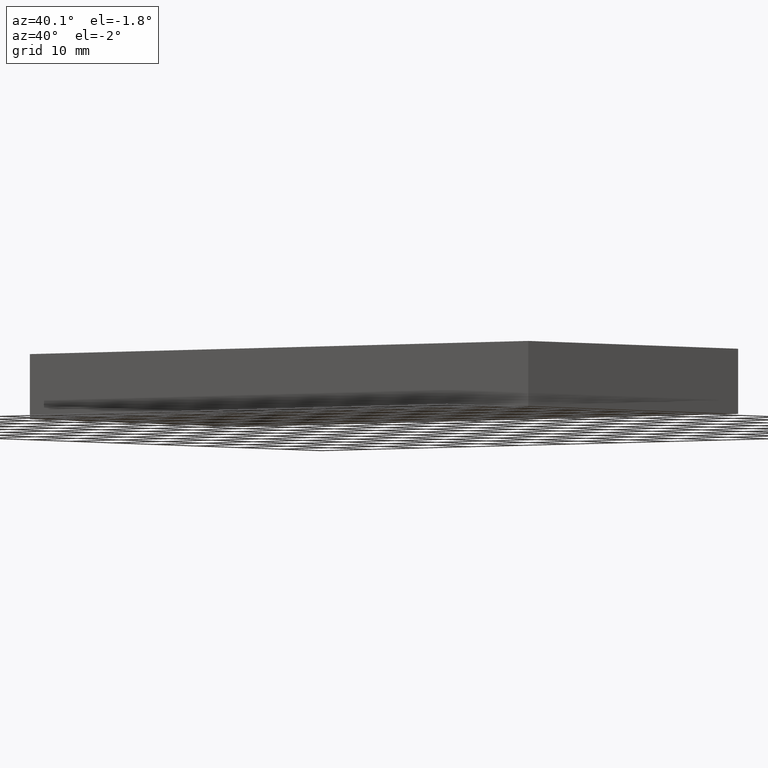
[diagram: clean part render]
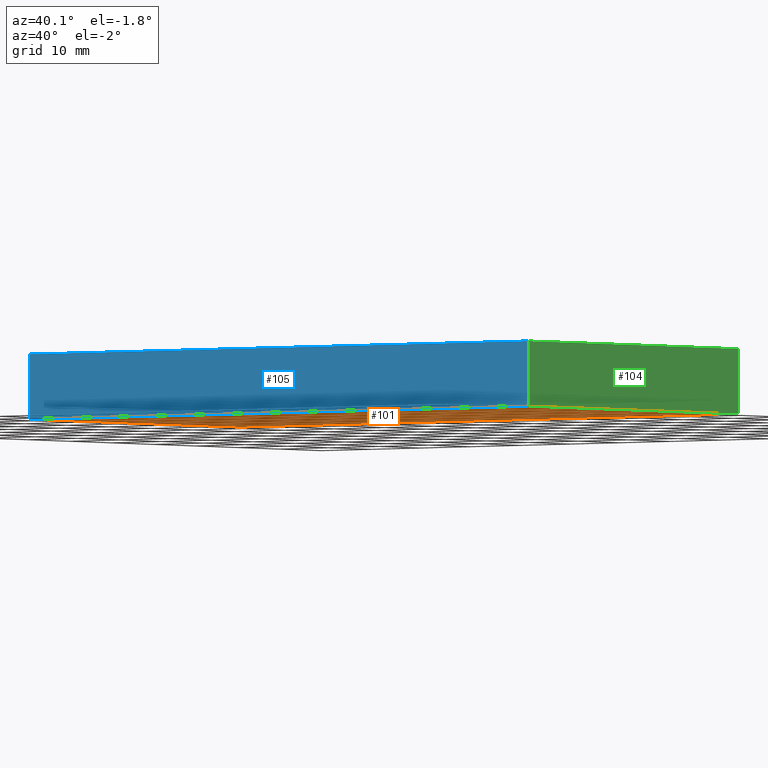
[diagram: same view with three faces highlighted in distinct colors, each labeled with its STEP entity id]
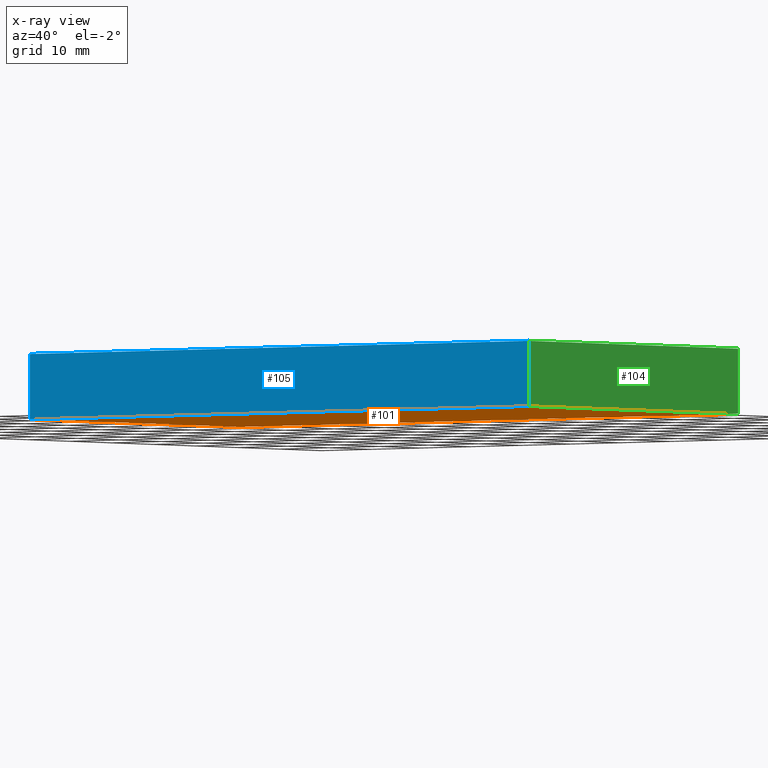
[diagram: x-ray of the same camera — body ghosted, the three highlighted faces saturated]
A machine part, auxiliary view with three faces highlighted in distinct colors.
The next image is the same camera in x-ray (body ghosted, the three faces saturated) — at least one of them is partly hidden behind the body in this view.
Their STEP definitions:

[orange] entity #101 — the highlighted planar face has unit normal (0, 0, 1).
#15=FACE_OUTER_BOUND('',#21,.T.);
#21=EDGE_LOOP('',(#71,#72,#73,#74));
#27=LINE('',#163,#39);
#28=LINE('',#165,#40);
#29=LINE('',#167,#41);
#30=LINE('',#168,#42);
#39=VECTOR('',#137,10.);
#40=VECTOR('',#138,10.);
#41=VECTOR('',#139,10.);
#42=VECTOR('',#140,10.);
#51=VERTEX_POINT('',#161);
#52=VERTEX_POINT('',#162);
#53=VERTEX_POINT('',#164);
#54=VERTEX_POINT('',#166);
#59=EDGE_CURVE('',#51,#52,#27,.T.);
#60=EDGE_CURVE('',#53,#51,#28,.T.);
#61=EDGE_CURVE('',#54,#53,#29,.T.);
#62=EDGE_CURVE('',#52,#54,#30,.T.);
#71=ORIENTED_EDGE('',*,*,#59,.F.);
#72=ORIENTED_EDGE('',*,*,#60,.F.);
#73=ORIENTED_EDGE('',*,*,#61,.F.);
#74=ORIENTED_EDGE('',*,*,#62,.F.);
#95=PLANE('',#127);
#101=ADVANCED_FACE('',(#15),#95,.F.);
#127=AXIS2_PLACEMENT_3D('',#160,#135,#136);
#135=DIRECTION('center_axis',(0.,0.,1.));
#136=DIRECTION('ref_axis',(1.,0.,0.));
#137=DIRECTION('',(0.,1.,0.));
#138=DIRECTION('',(1.,0.,0.));
#139=DIRECTION('',(0.,-1.,0.));
#140=DIRECTION('',(-1.,-1.77635683940025E-16,0.));
#160=CARTESIAN_POINT('Origin',(3.33066907387547E-15,3.83531590325054E-15,
-5.));
#161=CARTESIAN_POINT('',(50.,-25.,-5.));
#162=CARTESIAN_POINT('',(50.,25.,-5.));
#163=CARTESIAN_POINT('',(50.,-25.,-5.));
#164=CARTESIAN_POINT('',(-50.,-25.,-5.));
#165=CARTESIAN_POINT('',(-50.,-25.,-5.));
#166=CARTESIAN_POINT('',(-50.,25.,-5.));
#167=CARTESIAN_POINT('',(-50.,25.,-5.));
#168=CARTESIAN_POINT('',(50.,25.,-5.));

[blue] entity #105 — the highlighted planar face has unit normal (0, -1, 0).
#19=FACE_OUTER_BOUND('',#25,.T.);
#25=EDGE_LOOP('',(#87,#88,#89,#90));
#28=LINE('',#165,#40);
#33=LINE('',#174,#45);
#37=LINE('',#182,#49);
#38=LINE('',#184,#50);
#40=VECTOR('',#138,10.);
#45=VECTOR('',#145,10.);
#49=VECTOR('',#153,10.);
#50=VECTOR('',#156,10.);
#51=VERTEX_POINT('',#161);
#53=VERTEX_POINT('',#164);
#55=VERTEX_POINT('',#170);
#58=VERTEX_POINT('',#180);
#60=EDGE_CURVE('',#53,#51,#28,.T.);
#65=EDGE_CURVE('',#55,#53,#33,.T.);
#69=EDGE_CURVE('',#51,#58,#37,.T.);
#70=EDGE_CURVE('',#58,#55,#38,.T.);
#87=ORIENTED_EDGE('',*,*,#70,.T.);
#88=ORIENTED_EDGE('',*,*,#65,.T.);
#89=ORIENTED_EDGE('',*,*,#60,.T.);
#90=ORIENTED_EDGE('',*,*,#69,.T.);
#99=PLANE('',#131);
#105=ADVANCED_FACE('',(#19),#99,.T.);
#131=AXIS2_PLACEMENT_3D('',#183,#154,#155);
#138=DIRECTION('',(1.,0.,0.));
#145=DIRECTION('',(0.,0.,-1.));
#153=DIRECTION('',(0.,0.,1.));
#154=DIRECTION('center_axis',(0.,-1.,0.));
#155=DIRECTION('ref_axis',(0.,0.,-1.));
#156=DIRECTION('',(-1.,0.,0.));
#161=CARTESIAN_POINT('',(50.,-25.,-5.));
#164=CARTESIAN_POINT('',(-50.,-25.,-5.));
#165=CARTESIAN_POINT('',(-50.,-25.,-5.));
#170=CARTESIAN_POINT('',(-50.,-25.,5.));
#174=CARTESIAN_POINT('',(-50.,-25.,0.));
#180=CARTESIAN_POINT('',(50.,-25.,5.));
#182=CARTESIAN_POINT('',(50.,-25.,0.));
#183=CARTESIAN_POINT('Origin',(50.,-25.,0.));
#184=CARTESIAN_POINT('',(-50.,-25.,5.));

[green] entity #104 — the highlighted planar face has unit normal (1, 0, 0).
#18=FACE_OUTER_BOUND('',#24,.T.);
#24=EDGE_LOOP('',(#83,#84,#85,#86));
#27=LINE('',#163,#39);
#35=LINE('',#178,#47);
#36=LINE('',#181,#48);
#37=LINE('',#182,#49);
#39=VECTOR('',#137,10.);
#47=VECTOR('',#149,10.);
#48=VECTOR('',#152,10.);
#49=VECTOR('',#153,10.);
#51=VERTEX_POINT('',#161);
#52=VERTEX_POINT('',#162);
#57=VERTEX_POINT('',#176);
#58=VERTEX_POINT('',#180);
#59=EDGE_CURVE('',#51,#52,#27,.T.);
#67=EDGE_CURVE('',#52,#57,#35,.T.);
#68=EDGE_CURVE('',#57,#58,#36,.T.);
#69=EDGE_CURVE('',#51,#58,#37,.T.);
#83=ORIENTED_EDGE('',*,*,#68,.T.);
#84=ORIENTED_EDGE('',*,*,#69,.F.);
#85=ORIENTED_EDGE('',*,*,#59,.T.);
#86=ORIENTED_EDGE('',*,*,#67,.T.);
#98=PLANE('',#130);
#104=ADVANCED_FACE('',(#18),#98,.T.);
#130=AXIS2_PLACEMENT_3D('',#179,#150,#151);
#137=DIRECTION('',(0.,1.,0.));
#149=DIRECTION('',(0.,0.,1.));
#150=DIRECTION('center_axis',(1.,0.,0.));
#151=DIRECTION('ref_axis',(0.,0.,-1.));
#152=DIRECTION('',(0.,-1.,0.));
#153=DIRECTION('',(0.,0.,1.));
#161=CARTESIAN_POINT('',(50.,-25.,-5.));
#162=CARTESIAN_POINT('',(50.,25.,-5.));
#163=CARTESIAN_POINT('',(50.,-25.,-5.));
#176=CARTESIAN_POINT('',(50.,25.,5.));
#178=CARTESIAN_POINT('',(50.,25.,0.));
#179=CARTESIAN_POINT('Origin',(50.,25.,0.));
#180=CARTESIAN_POINT('',(50.,-25.,5.));
#181=CARTESIAN_POINT('',(50.,-25.,5.));
#182=CARTESIAN_POINT('',(50.,-25.,0.));